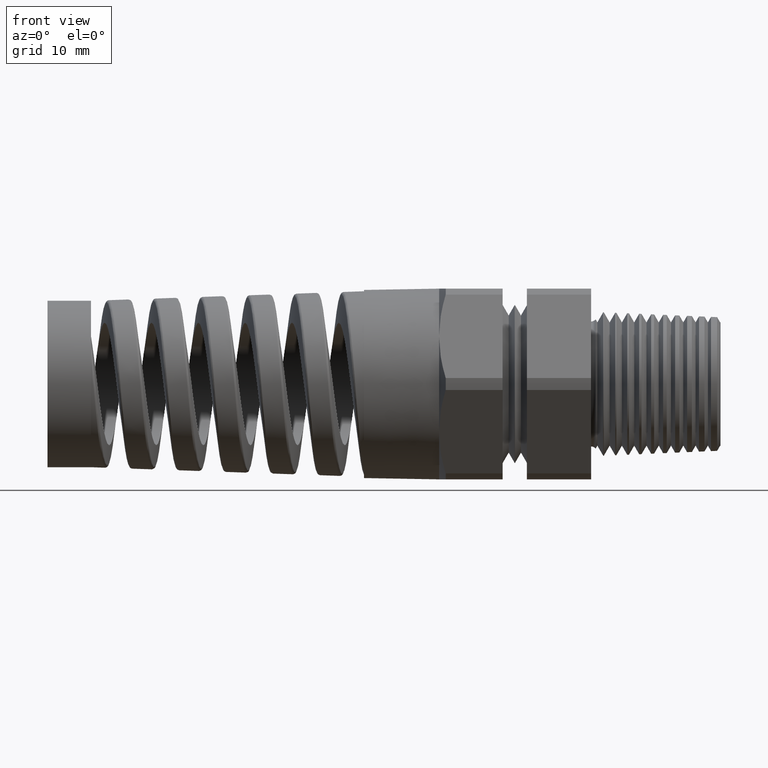
[diagram: clean part render]
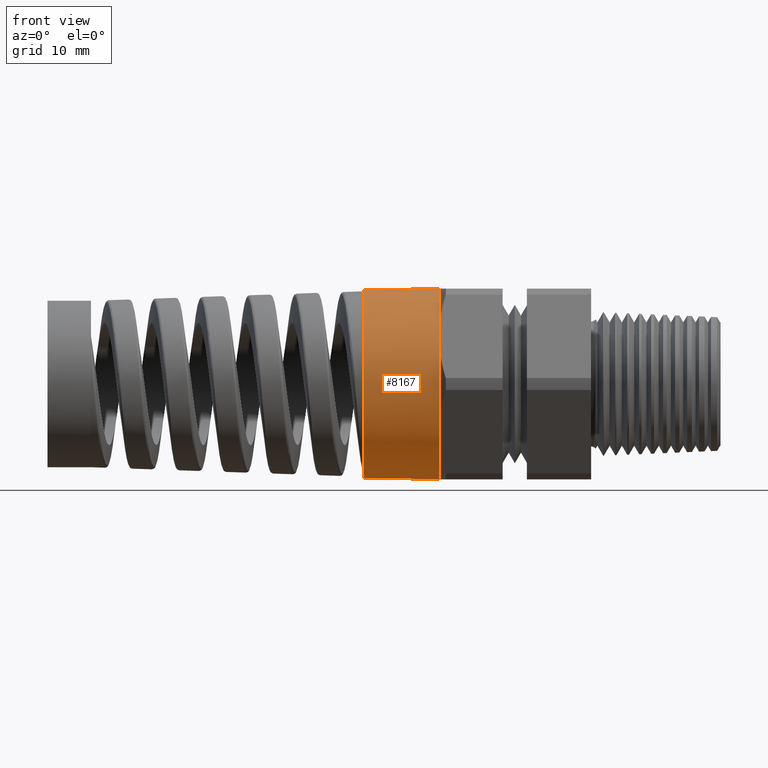
[diagram: same view with one face highlighted and labeled with its STEP entity id]
A machine part, front view. The second image highlights one B-rep face of the part: STEP entity #8167.
In plain terms, the highlighted conical surface has half-angle 1 deg.
Its self-contained STEP definition (entity closure, byte-faithful):
#5661 = DIRECTION ( 'NONE',  ( -1.000000000000000000, 0.0000000000000000000, 0.0000000000000000000 ) ) ;
#5662 = CARTESIAN_POINT ( 'NONE',  ( -0.6937499999999999800, 0.0000000000000000000, 0.0000000000000000000 ) ) ;
#5664 = AXIS2_PLACEMENT_3D ( 'NONE', #5662, #5661, #6379 ) ;
#5665 = CIRCLE ( 'NONE', #5664, 0.4349999999999999400 ) ;
#6015 = CARTESIAN_POINT ( 'NONE',  ( -1.035990000000000000, -5.290634469881254700E-017, -0.4290261785789668000 ) ) ;
#6016 = DIRECTION ( 'NONE',  ( 0.0000000000000000000, 0.0000000000000000000, 1.000000000000000000 ) ) ;
#6017 = DIRECTION ( 'NONE',  ( 1.000000000000000000, 0.0000000000000000000, 0.0000000000000000000 ) ) ;
#6018 = CARTESIAN_POINT ( 'NONE',  ( -0.6937499999999999800, 0.0000000000000000000, 0.0000000000000000000 ) ) ;
#6019 = AXIS2_PLACEMENT_3D ( 'NONE', #6018, #6017, #6016 ) ;
#6020 = CONICAL_SURFACE ( 'NONE', #6019, 0.4350000000000000000, 0.01745329251994333400 ) ;
#6021 = FACE_OUTER_BOUND ( 'NONE', #8168, .T. ) ;
#6291 = DIRECTION ( 'NONE',  ( 0.9998476951563912700, 0.0000000000000000000, 0.01745240643728355000 ) ) ;
#6292 = VECTOR ( 'NONE', #6291, 39.37007874015748100 ) ;
#6293 = CARTESIAN_POINT ( 'NONE',  ( -0.6937499999999999800, 0.0000000000000000000, 0.4350000000000000000 ) ) ;
#6294 = LINE ( 'NONE', #6293, #6292 ) ;
#6295 = DIRECTION ( 'NONE',  ( 0.0000000000000000000, 0.0000000000000000000, 1.000000000000000000 ) ) ;
#6296 = DIRECTION ( 'NONE',  ( -1.000000000000000000, 0.0000000000000000000, 0.0000000000000000000 ) ) ;
#6297 = CARTESIAN_POINT ( 'NONE',  ( -0.6937499999999999800, 0.0000000000000000000, 0.0000000000000000000 ) ) ;
#6298 = AXIS2_PLACEMENT_3D ( 'NONE', #6297, #6296, #6295 ) ;
#6299 = CIRCLE ( 'NONE', #6298, 0.4349999999999999400 ) ;
#6300 = CARTESIAN_POINT ( 'NONE',  ( -0.6937499999999999800, 0.0000000000000000000, 0.4349999999999999400 ) ) ;
#6319 = CARTESIAN_POINT ( 'NONE',  ( -0.6937499999999999800, 0.0000000000000000000, -0.4350000000000001600 ) ) ;
#6321 = DIRECTION ( 'NONE',  ( 0.9998476951563912700, -2.137303368083796300E-018, -0.01745240643728355000 ) ) ;
#6322 = VECTOR ( 'NONE', #6321, 39.37007874015748100 ) ;
#6323 = CARTESIAN_POINT ( 'NONE',  ( -0.6937499999999999800, -5.327213576290986400E-017, -0.4350000000000000000 ) ) ;
#6324 = LINE ( 'NONE', #6323, #6322 ) ;
#6325 = CARTESIAN_POINT ( 'NONE',  ( -1.035990000000000000, 0.0000000000000000000, 0.4290261785789668000 ) ) ;
#6326 = DIRECTION ( 'NONE',  ( 0.0000000000000000000, 0.0000000000000000000, 1.000000000000000000 ) ) ;
#6327 = DIRECTION ( 'NONE',  ( -1.000000000000000000, 0.0000000000000000000, 0.0000000000000000000 ) ) ;
#6328 = CARTESIAN_POINT ( 'NONE',  ( -1.035990000000000000, 0.0000000000000000000, 0.0000000000000000000 ) ) ;
#6329 = AXIS2_PLACEMENT_3D ( 'NONE', #6328, #6327, #6326 ) ;
#6330 = CIRCLE ( 'NONE', #6329, 0.4290261785789668000 ) ;
#6372 = CARTESIAN_POINT ( 'NONE',  ( -0.6937499999999999800, -0.3767210506462307900, 0.2175000000000001100 ) ) ;
#6373 = DIRECTION ( 'NONE',  ( 0.0000000000000000000, 0.0000000000000000000, 1.000000000000000000 ) ) ;
#6374 = DIRECTION ( 'NONE',  ( -1.000000000000000000, 0.0000000000000000000, 0.0000000000000000000 ) ) ;
#6375 = CARTESIAN_POINT ( 'NONE',  ( -0.6937499999999999800, 0.0000000000000000000, 0.0000000000000000000 ) ) ;
#6376 = AXIS2_PLACEMENT_3D ( 'NONE', #6375, #6374, #6373 ) ;
#6377 = CIRCLE ( 'NONE', #6376, 0.4349999999999999400 ) ;
#6378 = CARTESIAN_POINT ( 'NONE',  ( -0.6937499999999999800, -0.3767210506462306800, -0.2175000000000002500 ) ) ;
#6379 = DIRECTION ( 'NONE',  ( 0.0000000000000000000, 0.0000000000000000000, 1.000000000000000000 ) ) ;
#8167 = ADVANCED_FACE ( 'NONE', ( #6021 ), #6020, .T. ) ;
#8168 = EDGE_LOOP ( 'NONE', ( #8223, #8226, #8229, #8232, #8235, #8209 ) ) ;
#8169 = VERTEX_POINT ( 'NONE', #6015 ) ;
#8207 = EDGE_CURVE ( 'NONE', #8234, #8208, #6299, .T. ) ;
#8208 = VERTEX_POINT ( 'NONE', #6300 ) ;
#8209 = ORIENTED_EDGE ( 'NONE', *, *, #8210, .F. ) ;
#8210 = EDGE_CURVE ( 'NONE', #8225, #8208, #6294, .T. ) ;
#8223 = ORIENTED_EDGE ( 'NONE', *, *, #8224, .F. ) ;
#8224 = EDGE_CURVE ( 'NONE', #8169, #8225, #6330, .T. ) ;
#8225 = VERTEX_POINT ( 'NONE', #6325 ) ;
#8226 = ORIENTED_EDGE ( 'NONE', *, *, #8227, .T. ) ;
#8227 = EDGE_CURVE ( 'NONE', #8169, #8228, #6324, .T. ) ;
#8228 = VERTEX_POINT ( 'NONE', #6319 ) ;
#8229 = ORIENTED_EDGE ( 'NONE', *, *, #8230, .T. ) ;
#8230 = EDGE_CURVE ( 'NONE', #8228, #8231, #5665, .T. ) ;
#8231 = VERTEX_POINT ( 'NONE', #6378 ) ;
#8232 = ORIENTED_EDGE ( 'NONE', *, *, #8233, .T. ) ;
#8233 = EDGE_CURVE ( 'NONE', #8231, #8234, #6377, .T. ) ;
#8234 = VERTEX_POINT ( 'NONE', #6372 ) ;
#8235 = ORIENTED_EDGE ( 'NONE', *, *, #8207, .T. ) ;